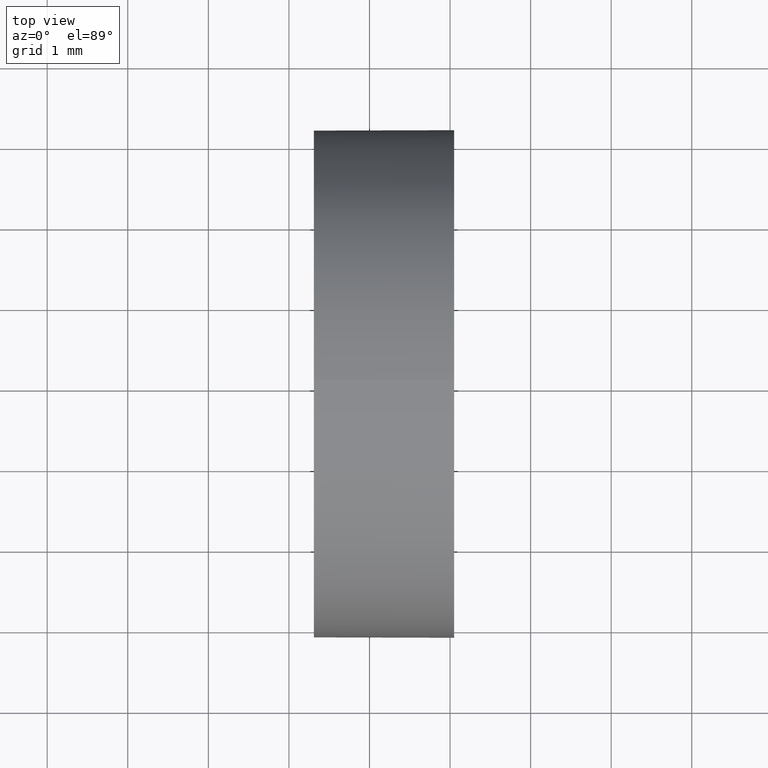
[diagram: clean part render]
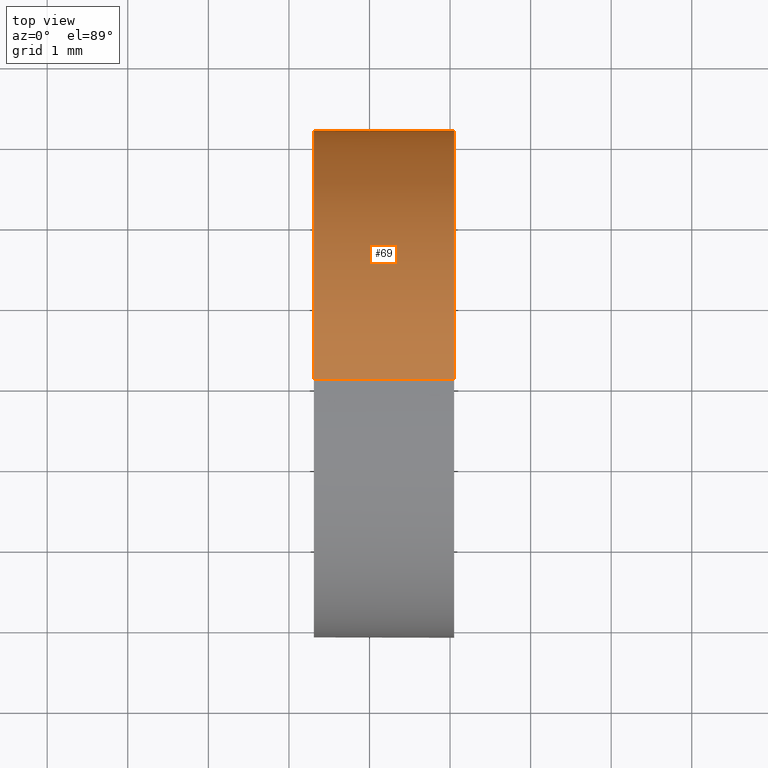
[diagram: same view with one face highlighted and labeled with its STEP entity id]
A machine part, top view. The second image highlights one B-rep face of the part: STEP entity #69.
In plain terms, the highlighted cylindrical surface (partial cylindrical patch) has radius 3.15 mm, axis along (-1, -0, -0).
Its self-contained STEP definition (entity closure, byte-faithful):
#5 = CARTESIAN_POINT ( 'NONE',  ( 22.30926883257449200, 13.03112609140304000, 0.0000000000000000000 ) ) ;
#6 = CARTESIAN_POINT ( 'NONE',  ( 24.05093720061594100, 13.03112609140304000, 0.0000000000000000000 ) ) ;
#11 = EDGE_CURVE ( 'NONE', #57, #145, #96, .T. ) ;
#24 = DIRECTION ( 'NONE',  ( -1.000000000000000000, -0.0000000000000000000, -0.0000000000000000000 ) ) ;
#35 = AXIS2_PLACEMENT_3D ( 'NONE', #73, #160, #148 ) ;
#39 = ORIENTED_EDGE ( 'NONE', *, *, #11, .F. ) ;
#40 = AXIS2_PLACEMENT_3D ( 'NONE', #6, #24, #116 ) ;
#41 = VERTEX_POINT ( 'NONE', #99 ) ;
#46 = CARTESIAN_POINT ( 'NONE',  ( 22.30926883257449200, 13.03112609140304000, -3.149999999999998100 ) ) ;
#51 = LINE ( 'NONE', #60, #122 ) ;
#57 = VERTEX_POINT ( 'NONE', #162 ) ;
#58 = EDGE_CURVE ( 'NONE', #142, #138, #71, .T. ) ;
#60 = CARTESIAN_POINT ( 'NONE',  ( 20.68403063513288800, 13.03112609140304000, 3.149999999999999900 ) ) ;
#62 = CARTESIAN_POINT ( 'NONE',  ( 24.05093720061594100, 16.18112609140305100, 0.0000000000000000000 ) ) ;
#69 = ADVANCED_FACE ( 'NONE', ( #185 ), #125, .T. ) ;
#71 = CIRCLE ( 'NONE', #35, 3.150000000000001700 ) ;
#72 = DIRECTION ( 'NONE',  ( -1.000000000000000000, -0.0000000000000000000, -0.0000000000000000000 ) ) ;
#73 = CARTESIAN_POINT ( 'NONE',  ( 24.05093720061594100, 13.03112609140304000, 0.0000000000000000000 ) ) ;
#81 = AXIS2_PLACEMENT_3D ( 'NONE', #5, #72, #132 ) ;
#86 = CIRCLE ( 'NONE', #40, 3.150000000000001700 ) ;
#94 = ORIENTED_EDGE ( 'NONE', *, *, #117, .T. ) ;
#96 = CIRCLE ( 'NONE', #81, 3.149999999999998100 ) ;
#97 = AXIS2_PLACEMENT_3D ( 'NONE', #177, #175, #110 ) ;
#99 = CARTESIAN_POINT ( 'NONE',  ( 24.05093720061594100, 13.03112609140304000, -3.150000000000001200 ) ) ;
#110 = DIRECTION ( 'NONE',  ( 0.0000000000000000000, 0.0000000000000000000, 1.000000000000000000 ) ) ;
#111 = CARTESIAN_POINT ( 'NONE',  ( 24.05093720061594100, 13.03112609140304000, 3.150000000000001200 ) ) ;
#116 = DIRECTION ( 'NONE',  ( 0.0000000000000000000, 0.0000000000000000000, 1.000000000000000000 ) ) ;
#117 = EDGE_CURVE ( 'NONE', #138, #41, #86, .T. ) ;
#119 = CARTESIAN_POINT ( 'NONE',  ( 20.68403063513288800, 13.03112609140304000, -3.149999999999999900 ) ) ;
#122 = VECTOR ( 'NONE', #154, 1000.000000000000000 ) ;
#124 = ORIENTED_EDGE ( 'NONE', *, *, #58, .T. ) ;
#125 = CYLINDRICAL_SURFACE ( 'NONE', #97, 3.149999999999999900 ) ;
#128 = EDGE_CURVE ( 'NONE', #142, #57, #51, .T. ) ;
#130 = EDGE_LOOP ( 'NONE', ( #94, #163, #39, #172, #124 ) ) ;
#132 = DIRECTION ( 'NONE',  ( 0.0000000000000000000, 0.0000000000000000000, 1.000000000000000000 ) ) ;
#136 = LINE ( 'NONE', #119, #184 ) ;
#138 = VERTEX_POINT ( 'NONE', #62 ) ;
#142 = VERTEX_POINT ( 'NONE', #111 ) ;
#145 = VERTEX_POINT ( 'NONE', #46 ) ;
#147 = EDGE_CURVE ( 'NONE', #41, #145, #136, .T. ) ;
#148 = DIRECTION ( 'NONE',  ( 0.0000000000000000000, 0.0000000000000000000, 1.000000000000000000 ) ) ;
#154 = DIRECTION ( 'NONE',  ( -1.000000000000000000, -0.0000000000000000000, -0.0000000000000000000 ) ) ;
#160 = DIRECTION ( 'NONE',  ( -1.000000000000000000, -0.0000000000000000000, -0.0000000000000000000 ) ) ;
#162 = CARTESIAN_POINT ( 'NONE',  ( 22.30926883257449200, 13.03112609140304000, 3.149999999999998100 ) ) ;
#163 = ORIENTED_EDGE ( 'NONE', *, *, #147, .T. ) ;
#167 = DIRECTION ( 'NONE',  ( -1.000000000000000000, -0.0000000000000000000, -0.0000000000000000000 ) ) ;
#172 = ORIENTED_EDGE ( 'NONE', *, *, #128, .F. ) ;
#175 = DIRECTION ( 'NONE',  ( -1.000000000000000000, -0.0000000000000000000, -0.0000000000000000000 ) ) ;
#177 = CARTESIAN_POINT ( 'NONE',  ( 20.68403063513288800, 13.03112609140304000, 0.0000000000000000000 ) ) ;
#184 = VECTOR ( 'NONE', #167, 1000.000000000000000 ) ;
#185 = FACE_OUTER_BOUND ( 'NONE', #130, .T. ) ;